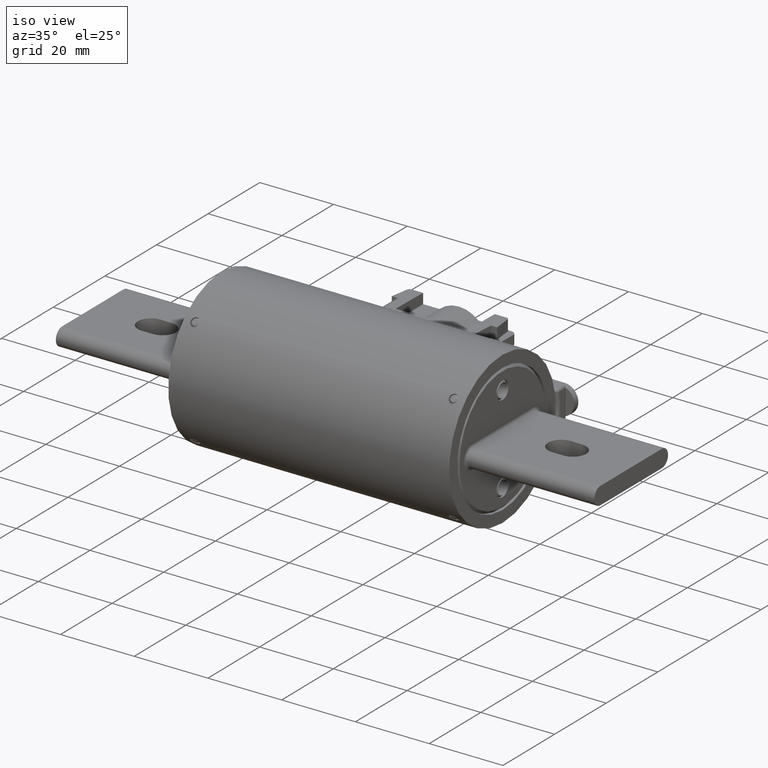
[diagram: clean part render]
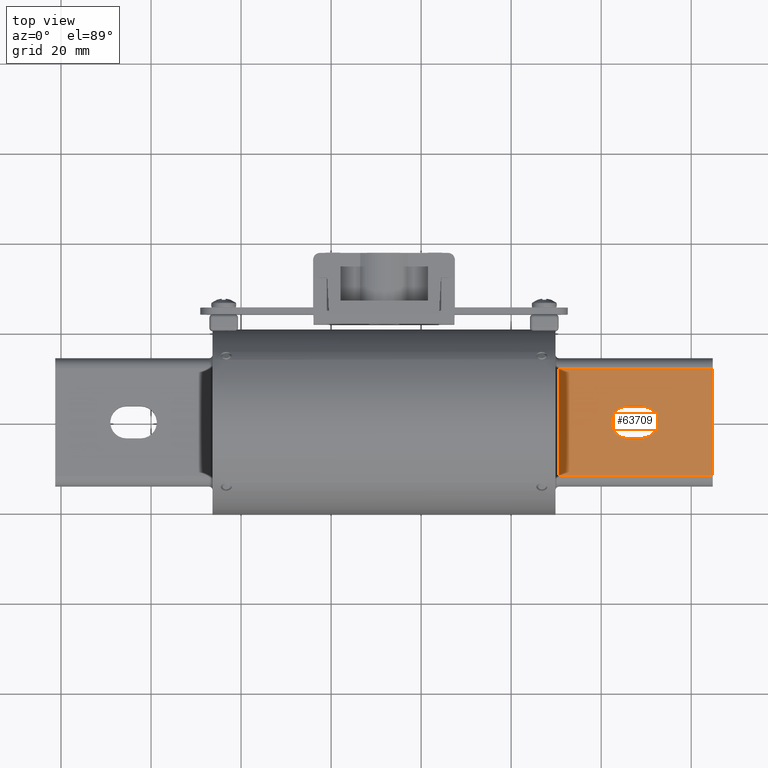
[diagram: tour spotlight — one face highlighted and labeled with its STEP entity id]
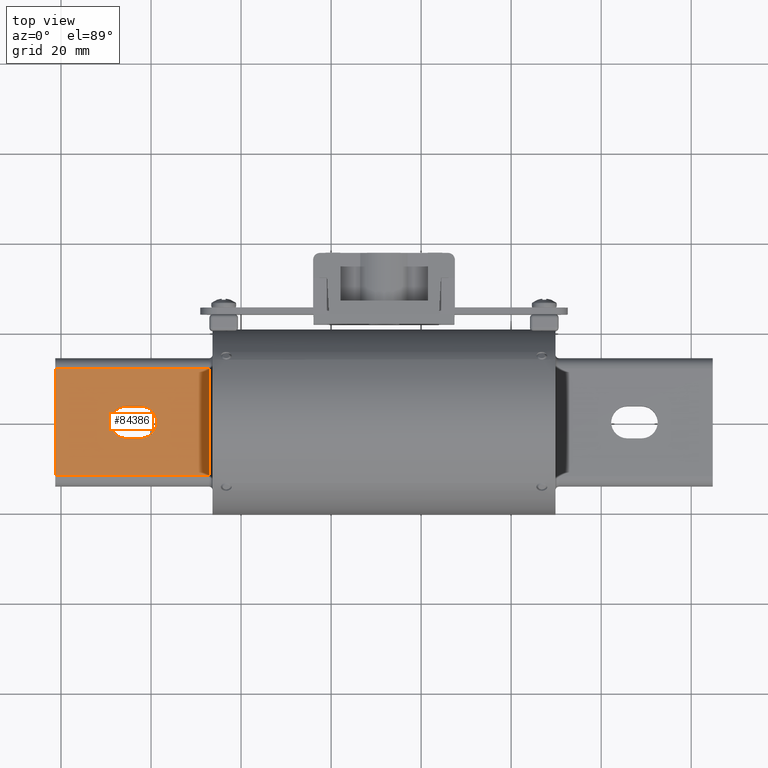
[diagram: tour spotlight — one face highlighted and labeled with its STEP entity id]
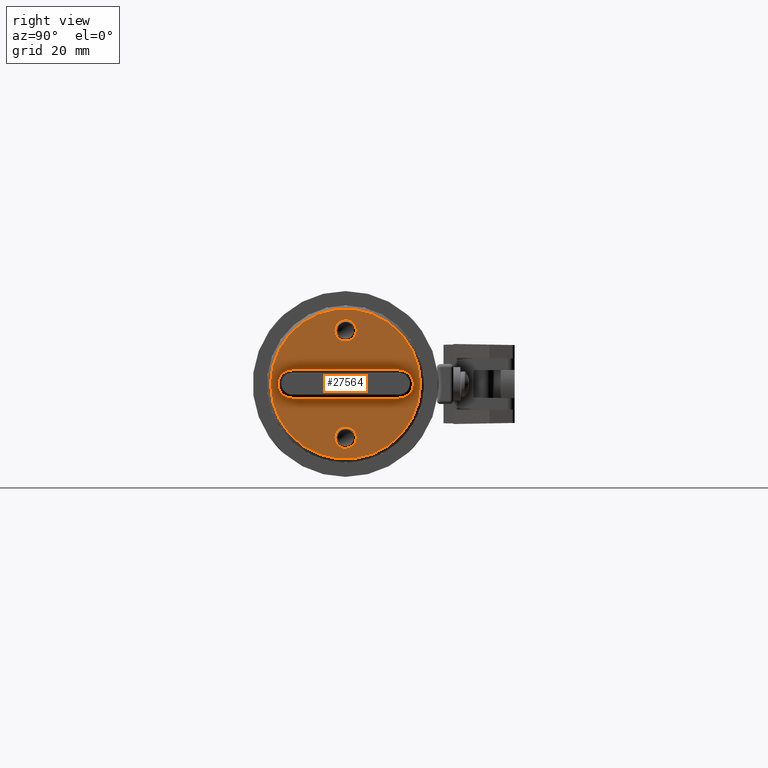
[diagram: tour spotlight — one face highlighted and labeled with its STEP entity id]
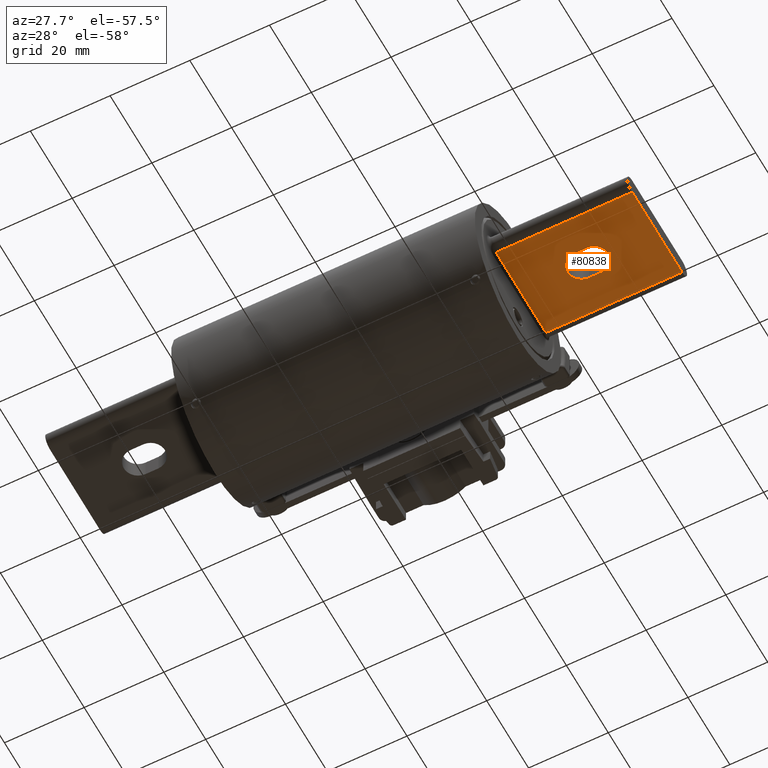
[diagram: tour spotlight — one face highlighted and labeled with its STEP entity id]
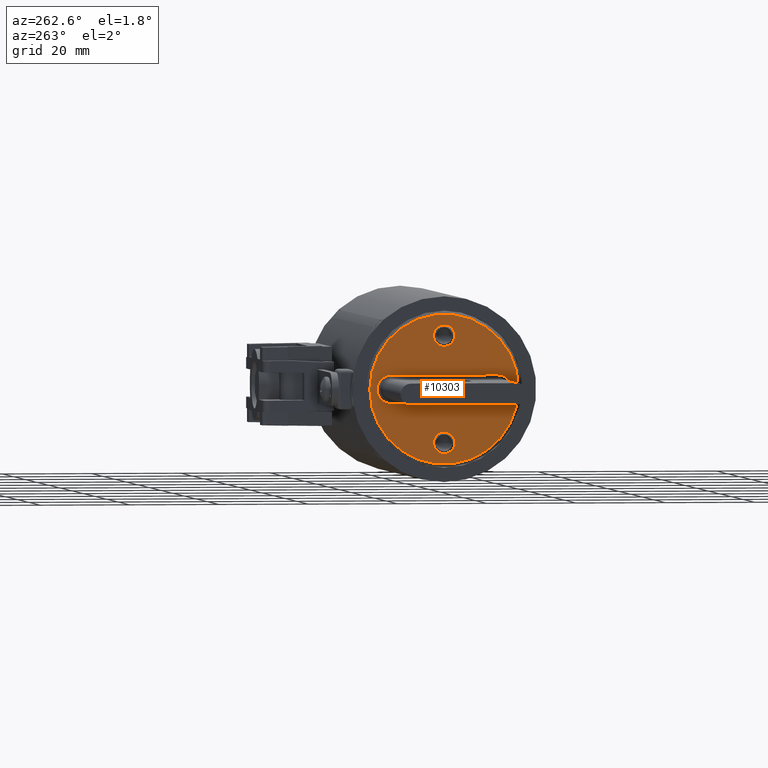
[diagram: tour spotlight — one face highlighted and labeled with its STEP entity id]
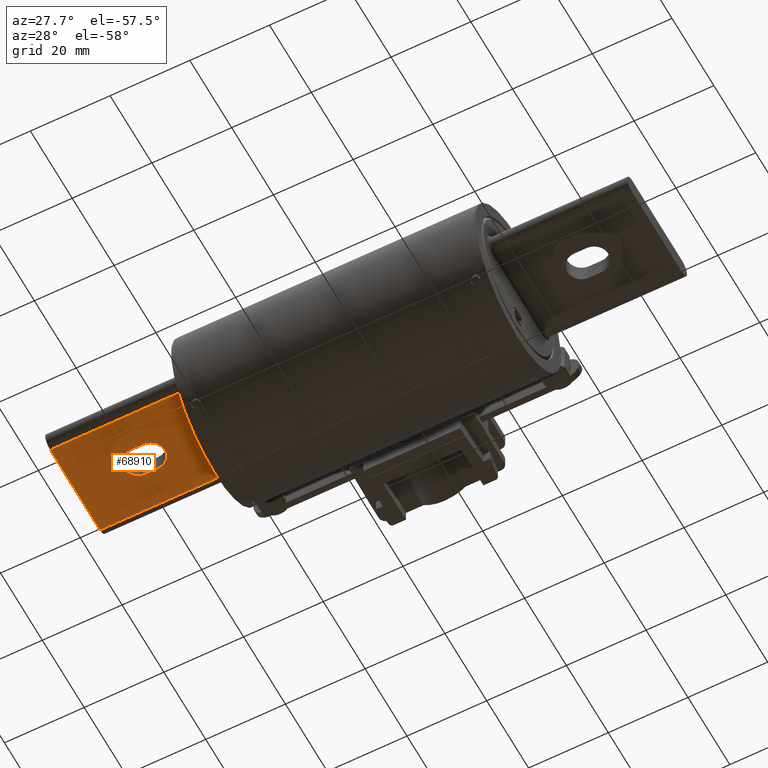
[diagram: tour spotlight — one face highlighted and labeled with its STEP entity id]
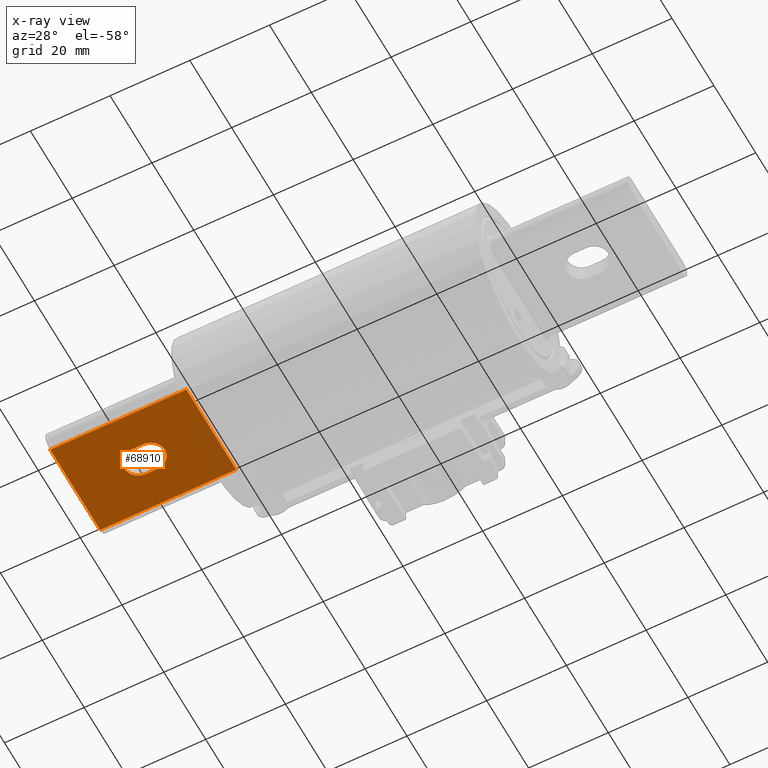
[diagram: x-ray of the same camera — body ghosted, this tour face saturated]
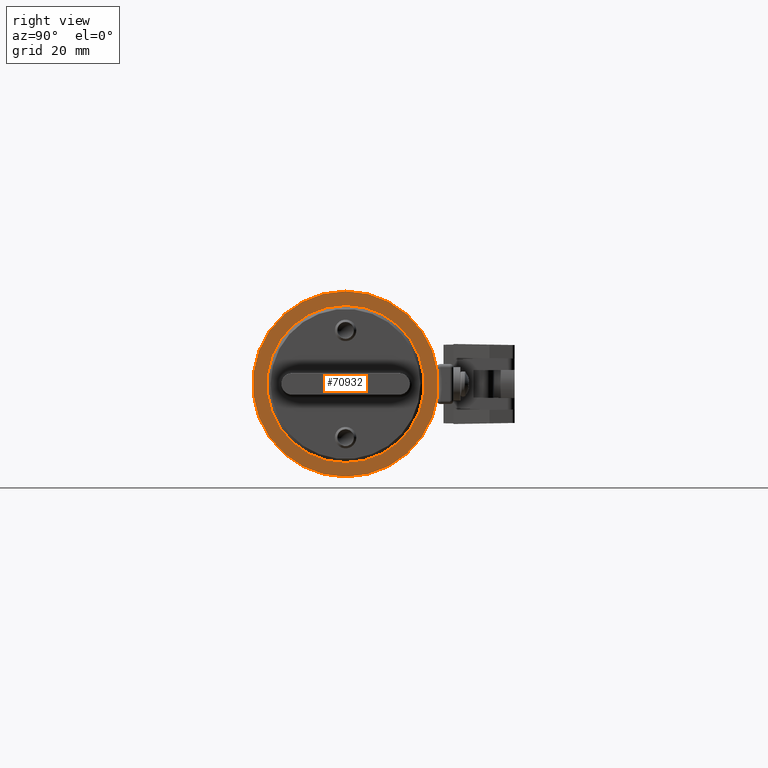
[diagram: tour spotlight — one face highlighted and labeled with its STEP entity id]
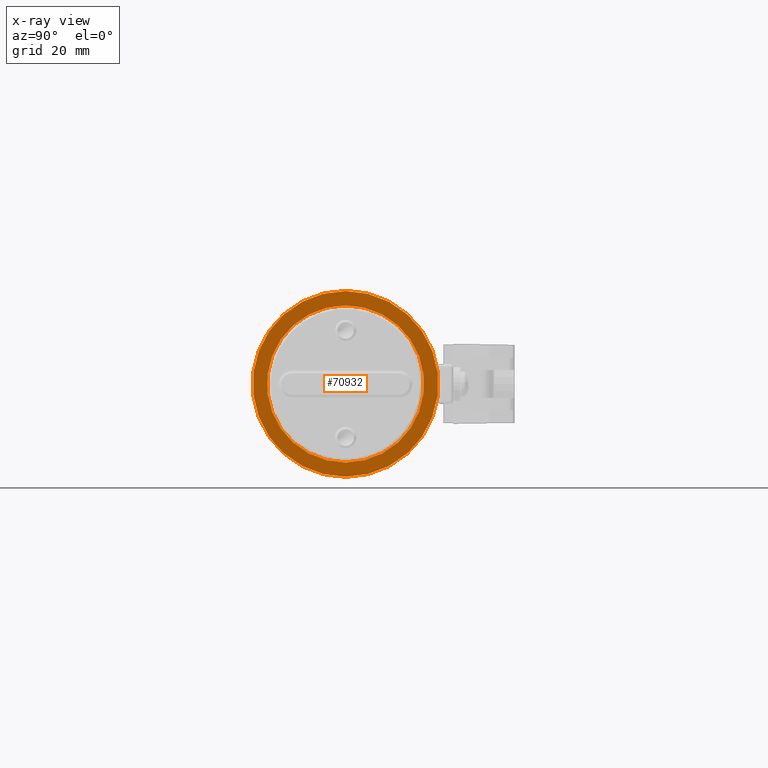
[diagram: x-ray of the same camera — body ghosted, this tour face saturated]
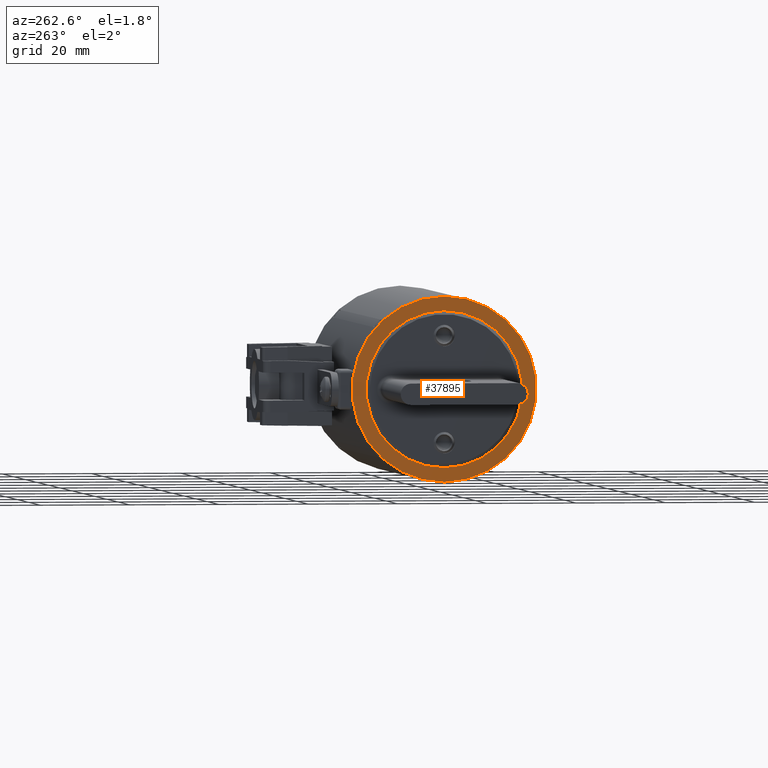
[diagram: tour spotlight — one face highlighted and labeled with its STEP entity id]
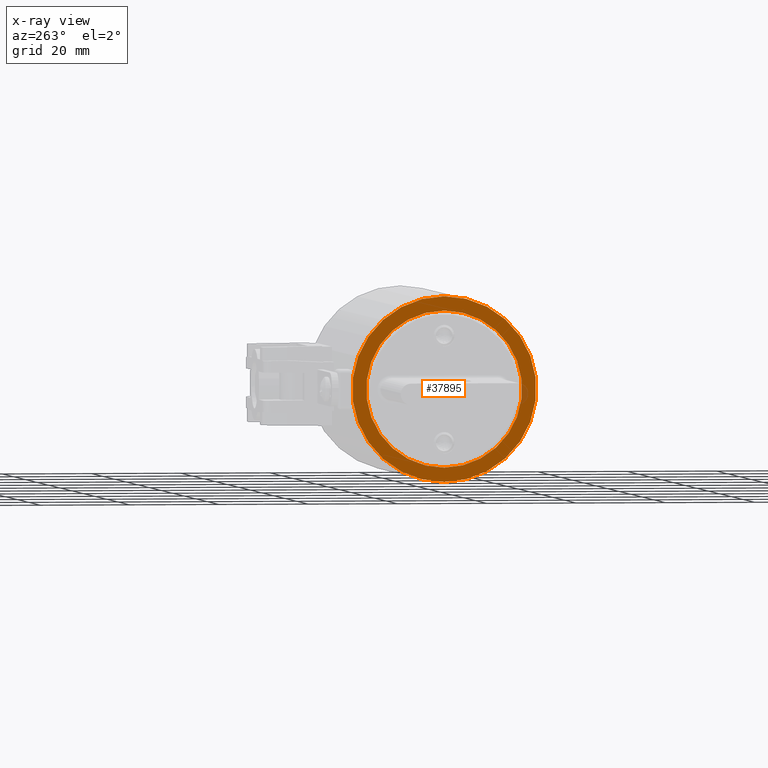
[diagram: x-ray of the same camera — body ghosted, this tour face saturated]
A machine part: a face-by-face anatomy tour. The part has 1412 B-rep faces; the first image is the clean iso view, then the 8 largest visible faces are spotlighted one at a time (largest first), each with its STEP entity span.

Face 1 — top view, entity #63709. In plain terms, the highlighted planar face has unit normal (-0, -0, -1).
Definition (entity closure, byte-faithful):
#4513 = EDGE_LOOP ( 'NONE', ( #73464, #84694, #71154, #83278 ) ) ;
#4594 = VERTEX_POINT ( 'NONE', #14296 ) ;
#5979 = DIRECTION ( 'NONE',  ( -1.183291357831517700E-030, -1.821231995776175500E-017, -1.000000000000000000 ) ) ;
#6194 = VECTOR ( 'NONE', #34552, 39.37007874015748100 ) ;
#6672 = VECTOR ( 'NONE', #70893, 39.37007874015748100 ) ;
#7104 = CIRCLE ( 'NONE', #21452, 0.1409999999999999600 ) ;
#7246 = VECTOR ( 'NONE', #31216, 39.37007874015748100 ) ;
#7629 = CARTESIAN_POINT ( 'NONE',  ( 3.377999999999998800, 5.122214988129037700E-018, 0.09375000000000012500 ) ) ;
#8597 = CARTESIAN_POINT ( 'NONE',  ( 4.124999999999998200, -0.4687500000000000000, 0.09375000000000012500 ) ) ;
#8602 = VERTEX_POINT ( 'NONE', #46447 ) ;
#8864 = DIRECTION ( 'NONE',  ( 2.155048081208195600E-047, -1.000000000000000000, 1.821231995776175500E-017 ) ) ;
#10279 = EDGE_CURVE ( 'NONE', #13212, #17296, #32636, .T. ) ;
#10486 = ORIENTED_EDGE ( 'NONE', *, *, #20313, .T. ) ;
#11638 = VERTEX_POINT ( 'NONE', #42933 ) ;
#11668 = EDGE_LOOP ( 'NONE', ( #80207, #75428, #21798, #10486 ) ) ;
#12873 = VECTOR ( 'NONE', #40616, 39.37007874015748100 ) ;
#13212 = VERTEX_POINT ( 'NONE', #56397 ) ;
#13476 = CARTESIAN_POINT ( 'NONE',  ( 4.124999999999998200, -0.4687500000000000000, 0.09375000000000012500 ) ) ;
#14201 = DIRECTION ( 'NONE',  ( 0.0000000000000000000, 1.000000000000000000, 0.0000000000000000000 ) ) ;
#14296 = CARTESIAN_POINT ( 'NONE',  ( 3.377999999999998800, 0.1409999999999999300, 0.09375000000000012500 ) ) ;
#14359 = CIRCLE ( 'NONE', #69276, 0.1409999999999999300 ) ;
#14935 = EDGE_CURVE ( 'NONE', #8602, #68216, #28294, .T. ) ;
#15112 = VECTOR ( 'NONE', #8864, 39.37007874015748100 ) ;
#17296 = VERTEX_POINT ( 'NONE', #32014 ) ;
#18382 = CARTESIAN_POINT ( 'NONE',  ( 4.124999999999998200, 0.4687500000000000000, 0.09375000000000012500 ) ) ;
#19507 = VERTEX_POINT ( 'NONE', #33694 ) ;
#20062 = DIRECTION ( 'NONE',  ( -2.155048081208195600E-047, 1.000000000000000000, -1.821231995776175500E-017 ) ) ;
#20313 = EDGE_CURVE ( 'NONE', #67559, #4594, #14359, .T. ) ;
#20702 = EDGE_CURVE ( 'NONE', #13212, #8602, #41612, .T. ) ;
#21452 = AXIS2_PLACEMENT_3D ( 'NONE', #45328, #5979, #51985 ) ;
#21798 = ORIENTED_EDGE ( 'NONE', *, *, #78840, .T. ) ;
#24571 = CARTESIAN_POINT ( 'NONE',  ( 4.124999999999998200, -0.1410000000000000700, 0.09375000000000012500 ) ) ;
#24674 = LINE ( 'NONE', #24571, #7246 ) ;
#27391 = EDGE_CURVE ( 'NONE', #19507, #11638, #7104, .T. ) ;
#27916 = CARTESIAN_POINT ( 'NONE',  ( 4.124999999999998200, -0.4687500000000000000, 0.09375000000000012500 ) ) ;
#28294 = LINE ( 'NONE', #73179, #12873 ) ;
#29739 = FACE_OUTER_BOUND ( 'NONE', #4513, .T. ) ;
#31216 = DIRECTION ( 'NONE',  ( -1.000000000000000000, 2.731847993664265700E-016, 1.178316028857859400E-030 ) ) ;
#32014 = CARTESIAN_POINT ( 'NONE',  ( 4.124999999999998200, -0.4687500000000000000, 0.09375000000000012500 ) ) ;
#32636 = LINE ( 'NONE', #8597, #15112 ) ;
#33694 = CARTESIAN_POINT ( 'NONE',  ( 3.502999999999998300, 0.1409999999999999300, 0.09375000000000012500 ) ) ;
#34552 = DIRECTION ( 'NONE',  ( -1.000000000000000000, 0.0000000000000000000, 1.183291357831517700E-030 ) ) ;
#37378 = CARTESIAN_POINT ( 'NONE',  ( 2.779999999999998000, -0.4687500000000000000, 0.09375000000000012500 ) ) ;
#40616 = DIRECTION ( 'NONE',  ( 2.155048081208195600E-047, -1.000000000000000000, 1.821231995776175500E-017 ) ) ;
#41612 = LINE ( 'NONE', #18382, #6672 ) ;
#42933 = CARTESIAN_POINT ( 'NONE',  ( 3.502999999999998300, -0.1409999999999999900, 0.09375000000000012500 ) ) ;
#45328 = CARTESIAN_POINT ( 'NONE',  ( 3.502999999999998300, 5.122214988129037700E-018, 0.09375000000000012500 ) ) ;
#46443 = EDGE_CURVE ( 'NONE', #4594, #19507, #66205, .T. ) ;
#46447 = CARTESIAN_POINT ( 'NONE',  ( 2.779999999999998000, 0.4687500000000000000, 0.09375000000000012500 ) ) ;
#47229 = FACE_BOUND ( 'NONE', #11668, .T. ) ;
#50041 = AXIS2_PLACEMENT_3D ( 'NONE', #13476, #59486, #20062 ) ;
#51985 = DIRECTION ( 'NONE',  ( 0.0000000000000000000, 1.000000000000000000, 0.0000000000000000000 ) ) ;
#53623 = DIRECTION ( 'NONE',  ( -1.183291357831517700E-030, -1.821231995776175500E-017, -1.000000000000000000 ) ) ;
#54533 = CARTESIAN_POINT ( 'NONE',  ( 3.377999999999998800, -0.1409999999999998800, 0.09375000000000012500 ) ) ;
#56397 = CARTESIAN_POINT ( 'NONE',  ( 4.124999999999998200, 0.4687500000000000000, 0.09375000000000012500 ) ) ;
#58625 = LINE ( 'NONE', #27916, #6194 ) ;
#59486 = DIRECTION ( 'NONE',  ( -1.183291357831517700E-030, -1.821231995776175500E-017, -1.000000000000000000 ) ) ;
#63709 = ADVANCED_FACE ( 'NONE', ( #47229, #29739 ), #72245, .F. ) ;
#64140 = VECTOR ( 'NONE', #78285, 39.37007874015748100 ) ;
#66205 = LINE ( 'NONE', #71770, #64140 ) ;
#67559 = VERTEX_POINT ( 'NONE', #54533 ) ;
#68216 = VERTEX_POINT ( 'NONE', #37378 ) ;
#69198 = EDGE_CURVE ( 'NONE', #17296, #68216, #58625, .T. ) ;
#69276 = AXIS2_PLACEMENT_3D ( 'NONE', #7629, #53623, #14201 ) ;
#70893 = DIRECTION ( 'NONE',  ( -1.000000000000000000, 0.0000000000000000000, 1.183291357831517700E-030 ) ) ;
#71154 = ORIENTED_EDGE ( 'NONE', *, *, #69198, .F. ) ;
#71770 = CARTESIAN_POINT ( 'NONE',  ( 4.124999999999998200, 0.1409999999999999300, 0.09375000000000011100 ) ) ;
#72245 = PLANE ( 'NONE',  #50041 ) ;
#73179 = CARTESIAN_POINT ( 'NONE',  ( 2.779999999999998000, -0.4687500000000000000, 0.09375000000000012500 ) ) ;
#73464 = ORIENTED_EDGE ( 'NONE', *, *, #20702, .T. ) ;
#75428 = ORIENTED_EDGE ( 'NONE', *, *, #27391, .T. ) ;
#78285 = DIRECTION ( 'NONE',  ( 1.000000000000000000, 0.0000000000000000000, -1.183291357831517700E-030 ) ) ;
#78840 = EDGE_CURVE ( 'NONE', #11638, #67559, #24674, .T. ) ;
#80207 = ORIENTED_EDGE ( 'NONE', *, *, #46443, .T. ) ;
#83278 = ORIENTED_EDGE ( 'NONE', *, *, #10279, .F. ) ;
#84694 = ORIENTED_EDGE ( 'NONE', *, *, #14935, .T. ) ;

Face 2 — top view, entity #84386. In plain terms, the highlighted planar face has unit normal (0, 0, -1).
Definition (entity closure, byte-faithful):
#2192 = EDGE_LOOP ( 'NONE', ( #22207, #79092, #19687, #10078 ) ) ;
#3260 = ORIENTED_EDGE ( 'NONE', *, *, #25788, .T. ) ;
#3670 = EDGE_CURVE ( 'NONE', #50966, #6063, #34035, .T. ) ;
#4221 = CIRCLE ( 'NONE', #53756, 0.1409999999999999300 ) ;
#5193 = CARTESIAN_POINT ( 'NONE',  ( -0.2800000000000000300, 0.4687500000000000000, 0.09375000000000012500 ) ) ;
#5463 = VECTOR ( 'NONE', #8899, 39.37007874015748100 ) ;
#5861 = CARTESIAN_POINT ( 'NONE',  ( -1.002999999999999900, -0.1409999999999999300, 0.09375000000000012500 ) ) ;
#6063 = VERTEX_POINT ( 'NONE', #30254 ) ;
#8899 = DIRECTION ( 'NONE',  ( -7.183493604027317500E-048, 1.000000000000000000, 1.821231995776175500E-017 ) ) ;
#9593 = VERTEX_POINT ( 'NONE', #59863 ) ;
#10078 = ORIENTED_EDGE ( 'NONE', *, *, #3670, .F. ) ;
#12202 = DIRECTION ( 'NONE',  ( 3.944304526105058200E-031, 1.821231995776175500E-017, -1.000000000000000000 ) ) ;
#12426 = CARTESIAN_POINT ( 'NONE',  ( -1.002999999999999900, 0.1409999999999999900, 0.09375000000000012500 ) ) ;
#12777 = CARTESIAN_POINT ( 'NONE',  ( -0.8780000000000000000, -5.122214988120498200E-018, 0.09375000000000012500 ) ) ;
#13706 = DIRECTION ( 'NONE',  ( 3.944304526105058600E-031, 1.821231995776175500E-017, -1.000000000000000000 ) ) ;
#14778 = VECTOR ( 'NONE', #14845, 39.37007874015748100 ) ;
#14845 = DIRECTION ( 'NONE',  ( 1.000000000000000000, -2.731847993664265700E-016, 3.894551236368475500E-031 ) ) ;
#15262 = VERTEX_POINT ( 'NONE', #5193 ) ;
#15352 = FACE_OUTER_BOUND ( 'NONE', #2192, .T. ) ;
#19355 = DIRECTION ( 'NONE',  ( 0.0000000000000000000, -1.000000000000000000, 0.0000000000000000000 ) ) ;
#19687 = ORIENTED_EDGE ( 'NONE', *, *, #34697, .F. ) ;
#22207 = ORIENTED_EDGE ( 'NONE', *, *, #24080, .T. ) ;
#24080 = EDGE_CURVE ( 'NONE', #50966, #74370, #33617, .T. ) ;
#25788 = EDGE_CURVE ( 'NONE', #30687, #67737, #35019, .T. ) ;
#27754 = CARTESIAN_POINT ( 'NONE',  ( -1.625000000000000000, 0.1410000000000000700, 0.09375000000000012500 ) ) ;
#28245 = DIRECTION ( 'NONE',  ( 1.000000000000000000, 0.0000000000000000000, 3.944304526105058200E-031 ) ) ;
#28413 = EDGE_CURVE ( 'NONE', #9593, #30687, #37586, .T. ) ;
#29742 = CARTESIAN_POINT ( 'NONE',  ( -1.625000000000000000, 0.4687500000000000000, 0.09375000000000012500 ) ) ;
#30254 = CARTESIAN_POINT ( 'NONE',  ( -1.625000000000000000, 0.4687500000000000000, 0.09375000000000012500 ) ) ;
#30687 = VERTEX_POINT ( 'NONE', #5861 ) ;
#30792 = FACE_BOUND ( 'NONE', #77255, .T. ) ;
#33617 = LINE ( 'NONE', #58031, #49072 ) ;
#34035 = LINE ( 'NONE', #29742, #68849 ) ;
#34697 = EDGE_CURVE ( 'NONE', #6063, #15262, #57207, .T. ) ;
#35019 = CIRCLE ( 'NONE', #65437, 0.1409999999999999600 ) ;
#35062 = AXIS2_PLACEMENT_3D ( 'NONE', #51632, #12202, #58218 ) ;
#35429 = EDGE_CURVE ( 'NONE', #74370, #15262, #40436, .T. ) ;
#36315 = EDGE_CURVE ( 'NONE', #70593, #9593, #4221, .T. ) ;
#37586 = LINE ( 'NONE', #83651, #72381 ) ;
#39567 = EDGE_CURVE ( 'NONE', #67737, #70593, #51845, .T. ) ;
#40346 = ORIENTED_EDGE ( 'NONE', *, *, #36315, .T. ) ;
#40436 = LINE ( 'NONE', #48314, #5463 ) ;
#43853 = CARTESIAN_POINT ( 'NONE',  ( -1.625000000000000000, -0.4687500000000000000, 0.09375000000000012500 ) ) ;
#48314 = CARTESIAN_POINT ( 'NONE',  ( -0.2800000000000000300, 0.4687500000000000000, 0.09375000000000012500 ) ) ;
#49072 = VECTOR ( 'NONE', #51450, 39.37007874015748100 ) ;
#50888 = DIRECTION ( 'NONE',  ( -7.183493604027317500E-048, 1.000000000000000000, 1.821231995776175500E-017 ) ) ;
#50966 = VERTEX_POINT ( 'NONE', #43853 ) ;
#51357 = PLANE ( 'NONE',  #35062 ) ;
#51450 = DIRECTION ( 'NONE',  ( 1.000000000000000000, 0.0000000000000000000, 3.944304526105058200E-031 ) ) ;
#51632 = CARTESIAN_POINT ( 'NONE',  ( -1.625000000000000000, 0.4687500000000000000, 0.09375000000000012500 ) ) ;
#51845 = LINE ( 'NONE', #27754, #14778 ) ;
#53137 = CARTESIAN_POINT ( 'NONE',  ( -1.002999999999999900, -5.122214988120498200E-018, 0.09375000000000012500 ) ) ;
#53756 = AXIS2_PLACEMENT_3D ( 'NONE', #12777, #58821, #19355 ) ;
#55117 = CARTESIAN_POINT ( 'NONE',  ( -0.8780000000000000000, 0.1409999999999998800, 0.09375000000000012500 ) ) ;
#57207 = LINE ( 'NONE', #74124, #74489 ) ;
#57724 = DIRECTION ( 'NONE',  ( -1.000000000000000000, 0.0000000000000000000, -3.944304526105058200E-031 ) ) ;
#58031 = CARTESIAN_POINT ( 'NONE',  ( -1.625000000000000000, -0.4687500000000000000, 0.09375000000000012500 ) ) ;
#58218 = DIRECTION ( 'NONE',  ( 7.183493604027317500E-048, -1.000000000000000000, -1.821231995776175500E-017 ) ) ;
#58821 = DIRECTION ( 'NONE',  ( 3.944304526105058600E-031, 1.821231995776175500E-017, -1.000000000000000000 ) ) ;
#59702 = DIRECTION ( 'NONE',  ( 0.0000000000000000000, -1.000000000000000000, 0.0000000000000000000 ) ) ;
#59863 = CARTESIAN_POINT ( 'NONE',  ( -0.8780000000000000000, -0.1409999999999999300, 0.09375000000000012500 ) ) ;
#65437 = AXIS2_PLACEMENT_3D ( 'NONE', #53137, #13706, #59702 ) ;
#67737 = VERTEX_POINT ( 'NONE', #12426 ) ;
#68849 = VECTOR ( 'NONE', #50888, 39.37007874015748100 ) ;
#70593 = VERTEX_POINT ( 'NONE', #55117 ) ;
#71865 = CARTESIAN_POINT ( 'NONE',  ( -0.2800000000000000300, -0.4687500000000000000, 0.09375000000000012500 ) ) ;
#72381 = VECTOR ( 'NONE', #57724, 39.37007874015748100 ) ;
#73417 = ORIENTED_EDGE ( 'NONE', *, *, #39567, .T. ) ;
#74124 = CARTESIAN_POINT ( 'NONE',  ( -1.625000000000000000, 0.4687500000000000000, 0.09375000000000012500 ) ) ;
#74370 = VERTEX_POINT ( 'NONE', #71865 ) ;
#74489 = VECTOR ( 'NONE', #28245, 39.37007874015748100 ) ;
#77255 = EDGE_LOOP ( 'NONE', ( #85106, #3260, #73417, #40346 ) ) ;
#79092 = ORIENTED_EDGE ( 'NONE', *, *, #35429, .T. ) ;
#83651 = CARTESIAN_POINT ( 'NONE',  ( -1.625000000000000000, -0.1409999999999999300, 0.09375000000000011100 ) ) ;
#84386 = ADVANCED_FACE ( 'NONE', ( #30792, #15352 ), #51357, .F. ) ;
#85106 = ORIENTED_EDGE ( 'NONE', *, *, #28413, .T. ) ;

Face 3 — right view, entity #27564. In plain terms, the highlighted planar face has unit normal (1, 0, -0).
Definition (entity closure, byte-faithful):
#813 = FACE_BOUND ( 'NONE', #34122, .T. ) ;
#2725 = DIRECTION ( 'NONE',  ( 0.0000000000000000000, 1.000000000000000000, -2.644533087458223300E-043 ) ) ;
#3519 = CARTESIAN_POINT ( 'NONE',  ( 2.749999999999998200, 0.4687500000000000000, -0.1237499999999999200 ) ) ;
#4142 = DIRECTION ( 'NONE',  ( -1.000000000000000000, 0.0000000000000000000, 1.183291357831517700E-030 ) ) ;
#4265 = DIRECTION ( 'NONE',  ( 0.0000000000000000000, -1.000000000000000000, 0.0000000000000000000 ) ) ;
#4683 = CIRCLE ( 'NONE', #9917, 0.09400000000000001400 ) ;
#6616 = VERTEX_POINT ( 'NONE', #3519 ) ;
#6867 = CIRCLE ( 'NONE', #42205, 0.09400000000000001400 ) ;
#8663 = VERTEX_POINT ( 'NONE', #55367 ) ;
#9917 = AXIS2_PLACEMENT_3D ( 'NONE', #82832, #43660, #4265 ) ;
#12417 = VERTEX_POINT ( 'NONE', #52589 ) ;
#13010 = CIRCLE ( 'NONE', #67177, 0.1237500000000000100 ) ;
#13495 = ORIENTED_EDGE ( 'NONE', *, *, #24341, .T. ) ;
#15272 = AXIS2_PLACEMENT_3D ( 'NONE', #81255, #42134, #2725 ) ;
#15857 = DIRECTION ( 'NONE',  ( -1.000000000000000000, -0.0000000000000000000, 1.183291357831517700E-030 ) ) ;
#16450 = DIRECTION ( 'NONE',  ( -1.000000000000000000, -0.0000000000000000000, 1.183291357831517700E-030 ) ) ;
#17725 = DIRECTION ( 'NONE',  ( -2.155048081208195600E-047, 1.000000000000000000, -1.821231995776175500E-017 ) ) ;
#17950 = EDGE_CURVE ( 'NONE', #75301, #75301, #6867, .T. ) ;
#18161 = AXIS2_PLACEMENT_3D ( 'NONE', #55880, #16450, #62399 ) ;
#18294 = FACE_OUTER_BOUND ( 'NONE', #31842, .T. ) ;
#18369 = CARTESIAN_POINT ( 'NONE',  ( 2.749999999999998200, -0.4687500000000000000, 0.1237500000000001400 ) ) ;
#20709 = EDGE_LOOP ( 'NONE', ( #79847 ) ) ;
#21218 = LINE ( 'NONE', #28964, #56276 ) ;
#22566 = CIRCLE ( 'NONE', #18161, 0.1237500000000000100 ) ;
#24341 = EDGE_CURVE ( 'NONE', #37539, #37539, #48891, .T. ) ;
#27564 = ADVANCED_FACE ( 'NONE', ( #813, #68630, #70665, #18294 ), #78689, .T. ) ;
#28693 = CARTESIAN_POINT ( 'NONE',  ( 2.749999999999998200, -0.09400000000000005600, -0.4689999999999999700 ) ) ;
#28964 = CARTESIAN_POINT ( 'NONE',  ( 2.749999999999998200, -6.761323784310504300E-018, -0.1237499999999998700 ) ) ;
#29487 = EDGE_CURVE ( 'NONE', #84879, #12417, #76093, .T. ) ;
#30710 = CARTESIAN_POINT ( 'NONE',  ( 2.749999999999998200, 2.253774594781558800E-018, 0.1237500000000001100 ) ) ;
#31842 = EDGE_LOOP ( 'NONE', ( #13495 ) ) ;
#33271 = DIRECTION ( 'NONE',  ( 1.000000000000000000, 0.0000000000000000000, -1.183291357831517700E-030 ) ) ;
#33476 = EDGE_CURVE ( 'NONE', #12417, #6616, #22566, .T. ) ;
#34122 = EDGE_LOOP ( 'NONE', ( #68413, #39732, #35662, #66484 ) ) ;
#35662 = ORIENTED_EDGE ( 'NONE', *, *, #29487, .T. ) ;
#37539 = VERTEX_POINT ( 'NONE', #79827 ) ;
#37983 = EDGE_LOOP ( 'NONE', ( #75370 ) ) ;
#39732 = ORIENTED_EDGE ( 'NONE', *, *, #41527, .T. ) ;
#41314 = VECTOR ( 'NONE', #17725, 39.37007874015748100 ) ;
#41527 = EDGE_CURVE ( 'NONE', #43933, #84879, #13010, .T. ) ;
#41929 = DIRECTION ( 'NONE',  ( 6.465144243624586800E-047, -1.000000000000000000, 5.463695987328526400E-017 ) ) ;
#42134 = DIRECTION ( 'NONE',  ( 1.000000000000000000, 0.0000000000000000000, -1.183291357831517700E-030 ) ) ;
#42205 = AXIS2_PLACEMENT_3D ( 'NONE', #43536, #4142, #50202 ) ;
#43536 = CARTESIAN_POINT ( 'NONE',  ( 2.749999999999998200, -5.743593488000233200E-017, -0.4689999999999999700 ) ) ;
#43660 = DIRECTION ( 'NONE',  ( -1.000000000000000000, 0.0000000000000000000, 1.183291357831517700E-030 ) ) ;
#43933 = VERTEX_POINT ( 'NONE', #60274 ) ;
#48891 = CIRCLE ( 'NONE', #15272, 0.6560000000000011400 ) ;
#50202 = DIRECTION ( 'NONE',  ( 0.0000000000000000000, -1.000000000000000000, 0.0000000000000000000 ) ) ;
#52589 = CARTESIAN_POINT ( 'NONE',  ( 2.749999999999998200, 0.4687500000000000000, 0.1237500000000001400 ) ) ;
#55294 = CARTESIAN_POINT ( 'NONE',  ( 2.749999999999998200, -0.4687500000000000000, 5.975917486140715700E-017 ) ) ;
#55367 = CARTESIAN_POINT ( 'NONE',  ( 2.749999999999998200, -0.09400000000000001400, 0.4689999999999999700 ) ) ;
#55880 = CARTESIAN_POINT ( 'NONE',  ( 2.749999999999998200, 0.4687500000000000000, 1.112382256183039600E-016 ) ) ;
#56276 = VECTOR ( 'NONE', #41929, 39.37007874015748100 ) ;
#60274 = CARTESIAN_POINT ( 'NONE',  ( 2.749999999999998200, -0.4687500000000000000, -0.1237499999999998600 ) ) ;
#61812 = DIRECTION ( 'NONE',  ( 0.0000000000000000000, 1.000000000000000000, 0.0000000000000000000 ) ) ;
#62399 = DIRECTION ( 'NONE',  ( 0.0000000000000000000, 1.000000000000000000, 0.0000000000000000000 ) ) ;
#65466 = AXIS2_PLACEMENT_3D ( 'NONE', #72451, #33271, #78967 ) ;
#65929 = EDGE_CURVE ( 'NONE', #6616, #43933, #21218, .T. ) ;
#66484 = ORIENTED_EDGE ( 'NONE', *, *, #33476, .T. ) ;
#67177 = AXIS2_PLACEMENT_3D ( 'NONE', #55294, #15857, #61812 ) ;
#68413 = ORIENTED_EDGE ( 'NONE', *, *, #65929, .T. ) ;
#68630 = FACE_BOUND ( 'NONE', #20709, .T. ) ;
#70312 = EDGE_CURVE ( 'NONE', #8663, #8663, #4683, .T. ) ;
#70665 = FACE_BOUND ( 'NONE', #37983, .T. ) ;
#72451 = CARTESIAN_POINT ( 'NONE',  ( 2.749999999999998200, 8.539679527031985500E-030, 1.403438798797421700E-030 ) ) ;
#75301 = VERTEX_POINT ( 'NONE', #28693 ) ;
#75370 = ORIENTED_EDGE ( 'NONE', *, *, #17950, .T. ) ;
#76093 = LINE ( 'NONE', #30710, #41314 ) ;
#78689 = PLANE ( 'NONE',  #65466 ) ;
#78967 = DIRECTION ( 'NONE',  ( -3.128766006814256500E-073, 1.000000000000000000, -2.644121404341181800E-043 ) ) ;
#79827 = CARTESIAN_POINT ( 'NONE',  ( 2.749999999999998200, 0.6560000000000011400, 1.403438798797248300E-030 ) ) ;
#79847 = ORIENTED_EDGE ( 'NONE', *, *, #70312, .T. ) ;
#81255 = CARTESIAN_POINT ( 'NONE',  ( 2.749999999999998200, 8.539679527031985500E-030, 1.403438798797421700E-030 ) ) ;
#82832 = CARTESIAN_POINT ( 'NONE',  ( 2.749999999999998200, 8.539679527031857900E-030, 0.4689999999999999700 ) ) ;
#84879 = VERTEX_POINT ( 'NONE', #18369 ) ;

Face 4 — auxiliary view, entity #80838. In plain terms, the highlighted planar face has unit normal (0, 0, 1).
Definition (entity closure, byte-faithful):
#904 = ORIENTED_EDGE ( 'NONE', *, *, #45874, .F. ) ;
#1925 = CARTESIAN_POINT ( 'NONE',  ( 4.124999999999998200, -0.4687500000000000000, -0.09374999999999984700 ) ) ;
#4652 = VECTOR ( 'NONE', #48599, 39.37007874015748100 ) ;
#5448 = VERTEX_POINT ( 'NONE', #11181 ) ;
#5520 = DIRECTION ( 'NONE',  ( -1.000000000000000000, 2.731847993664265700E-016, 1.183291357831517700E-030 ) ) ;
#6559 = EDGE_CURVE ( 'NONE', #10207, #54388, #15052, .T. ) ;
#7814 = VERTEX_POINT ( 'NONE', #14526 ) ;
#8708 = FACE_BOUND ( 'NONE', #12631, .T. ) ;
#10207 = VERTEX_POINT ( 'NONE', #1925 ) ;
#11181 = CARTESIAN_POINT ( 'NONE',  ( 2.779999999999998000, -0.4687500000000000000, -0.09374999999999984700 ) ) ;
#12355 = VECTOR ( 'NONE', #34680, 39.37007874015748100 ) ;
#12631 = EDGE_LOOP ( 'NONE', ( #66300, #37584, #904, #28316 ) ) ;
#12965 = VECTOR ( 'NONE', #50452, 39.37007874015748100 ) ;
#13102 = PLANE ( 'NONE',  #53920 ) ;
#14526 = CARTESIAN_POINT ( 'NONE',  ( 3.502999999999998300, -0.1409999999999999900, -0.09374999999999987500 ) ) ;
#15052 = LINE ( 'NONE', #80243, #12965 ) ;
#15307 = ORIENTED_EDGE ( 'NONE', *, *, #51754, .T. ) ;
#17882 = DIRECTION ( 'NONE',  ( -1.183291357831517700E-030, -5.463695987328526400E-017, -1.000000000000000000 ) ) ;
#18328 = AXIS2_PLACEMENT_3D ( 'NONE', #76405, #37221, #83000 ) ;
#21396 = VERTEX_POINT ( 'NONE', #39300 ) ;
#21475 = ORIENTED_EDGE ( 'NONE', *, *, #6559, .F. ) ;
#22511 = LINE ( 'NONE', #51530, #37970 ) ;
#26708 = ORIENTED_EDGE ( 'NONE', *, *, #79395, .F. ) ;
#28316 = ORIENTED_EDGE ( 'NONE', *, *, #61368, .F. ) ;
#28411 = CARTESIAN_POINT ( 'NONE',  ( 3.502999999999998300, 0.1409999999999999300, -0.09374999999999988900 ) ) ;
#29853 = LINE ( 'NONE', #41297, #12355 ) ;
#30491 = VERTEX_POINT ( 'NONE', #80651 ) ;
#33267 = DIRECTION ( 'NONE',  ( 1.183291357831517700E-030, 5.463695987328526400E-017, 1.000000000000000000 ) ) ;
#34680 = DIRECTION ( 'NONE',  ( 1.000000000000000000, 0.0000000000000000000, -1.183291357831517700E-030 ) ) ;
#35915 = CARTESIAN_POINT ( 'NONE',  ( 4.124999999999998200, 0.4687500000000000000, -0.09374999999999990300 ) ) ;
#36041 = CIRCLE ( 'NONE', #18328, 0.1409999999999999300 ) ;
#37221 = DIRECTION ( 'NONE',  ( -1.183291357831517700E-030, -5.463695987328526400E-017, -1.000000000000000000 ) ) ;
#37384 = AXIS2_PLACEMENT_3D ( 'NONE', #57366, #17882, #63853 ) ;
#37584 = ORIENTED_EDGE ( 'NONE', *, *, #81153, .F. ) ;
#37970 = VECTOR ( 'NONE', #5520, 39.37007874015748100 ) ;
#38865 = VECTOR ( 'NONE', #42522, 39.37007874015748100 ) ;
#39300 = CARTESIAN_POINT ( 'NONE',  ( 3.377999999999998800, -0.1409999999999999300, -0.09374999999999988900 ) ) ;
#39626 = LINE ( 'NONE', #81087, #4652 ) ;
#41297 = CARTESIAN_POINT ( 'NONE',  ( 3.502999999999998300, 0.1409999999999999300, -0.09374999999999988900 ) ) ;
#42522 = DIRECTION ( 'NONE',  ( -1.000000000000000000, 0.0000000000000000000, 1.183291357831517700E-030 ) ) ;
#43213 = CARTESIAN_POINT ( 'NONE',  ( 4.124999999999998200, 0.4687500000000000000, -0.09374999999999990300 ) ) ;
#44021 = DIRECTION ( 'NONE',  ( -6.465144243624586800E-047, 1.000000000000000000, -5.463695987328526400E-017 ) ) ;
#45214 = VERTEX_POINT ( 'NONE', #28411 ) ;
#45874 = EDGE_CURVE ( 'NONE', #30491, #45214, #29853, .T. ) ;
#46152 = CARTESIAN_POINT ( 'NONE',  ( 2.779999999999998000, 0.4687500000000000000, -0.09374999999999990300 ) ) ;
#46555 = ORIENTED_EDGE ( 'NONE', *, *, #48656, .T. ) ;
#46995 = VECTOR ( 'NONE', #44021, 39.37007874015748100 ) ;
#48599 = DIRECTION ( 'NONE',  ( -1.000000000000000000, 0.0000000000000000000, 1.183291357831517700E-030 ) ) ;
#48656 = EDGE_CURVE ( 'NONE', #5448, #72793, #81707, .T. ) ;
#50452 = DIRECTION ( 'NONE',  ( -6.465144243624586800E-047, 1.000000000000000000, -5.463695987328526400E-017 ) ) ;
#51530 = CARTESIAN_POINT ( 'NONE',  ( 3.502999999999998300, -0.1409999999999999900, -0.09374999999999988900 ) ) ;
#51754 = EDGE_CURVE ( 'NONE', #10207, #5448, #39626, .T. ) ;
#53112 = EDGE_CURVE ( 'NONE', #7814, #21396, #22511, .T. ) ;
#53920 = AXIS2_PLACEMENT_3D ( 'NONE', #72449, #33267, #78963 ) ;
#54388 = VERTEX_POINT ( 'NONE', #43213 ) ;
#54864 = EDGE_LOOP ( 'NONE', ( #15307, #46555, #26708, #21475 ) ) ;
#57366 = CARTESIAN_POINT ( 'NONE',  ( 3.502999999999998300, -5.122214988111947800E-018, -0.09374999999999988900 ) ) ;
#57983 = CIRCLE ( 'NONE', #37384, 0.1409999999999999600 ) ;
#61368 = EDGE_CURVE ( 'NONE', #21396, #30491, #36041, .T. ) ;
#63853 = DIRECTION ( 'NONE',  ( 0.0000000000000000000, 1.000000000000000000, 0.0000000000000000000 ) ) ;
#66300 = ORIENTED_EDGE ( 'NONE', *, *, #53112, .F. ) ;
#72449 = CARTESIAN_POINT ( 'NONE',  ( 4.124999999999998200, -0.4687500000000000000, -0.09374999999999984700 ) ) ;
#72793 = VERTEX_POINT ( 'NONE', #46152 ) ;
#75725 = LINE ( 'NONE', #35915, #38865 ) ;
#76405 = CARTESIAN_POINT ( 'NONE',  ( 3.377999999999998800, -5.122214988111947800E-018, -0.09374999999999988900 ) ) ;
#76407 = FACE_OUTER_BOUND ( 'NONE', #54864, .T. ) ;
#76582 = CARTESIAN_POINT ( 'NONE',  ( 2.779999999999998000, -0.4687500000000000000, -0.09374999999999984700 ) ) ;
#78963 = DIRECTION ( 'NONE',  ( 6.465144243624586800E-047, -1.000000000000000000, 5.463695987328526400E-017 ) ) ;
#79395 = EDGE_CURVE ( 'NONE', #54388, #72793, #75725, .T. ) ;
#80243 = CARTESIAN_POINT ( 'NONE',  ( 4.124999999999998200, -0.4687500000000000000, -0.09374999999999984700 ) ) ;
#80651 = CARTESIAN_POINT ( 'NONE',  ( 3.377999999999998800, 0.1409999999999999300, -0.09374999999999988900 ) ) ;
#80838 = ADVANCED_FACE ( 'NONE', ( #8708, #76407 ), #13102, .F. ) ;
#81087 = CARTESIAN_POINT ( 'NONE',  ( 4.124999999999998200, -0.4687500000000000000, -0.09374999999999984700 ) ) ;
#81153 = EDGE_CURVE ( 'NONE', #45214, #7814, #57983, .T. ) ;
#81707 = LINE ( 'NONE', #76582, #46995 ) ;
#83000 = DIRECTION ( 'NONE',  ( 0.0000000000000000000, 1.000000000000000000, 0.0000000000000000000 ) ) ;

Face 5 — auxiliary view, entity #10303. In plain terms, the highlighted planar face has unit normal (-1, 0, -0).
Definition (entity closure, byte-faithful):
#1404 = ORIENTED_EDGE ( 'NONE', *, *, #66409, .T. ) ;
#2420 = CARTESIAN_POINT ( 'NONE',  ( -0.2500000000000000000, -0.4687500000000000000, -0.1237499999999999200 ) ) ;
#2675 = CARTESIAN_POINT ( 'NONE',  ( -0.2500000000000000000, 0.09400000000000001400, 0.4689999999999999700 ) ) ;
#3091 = AXIS2_PLACEMENT_3D ( 'NONE', #36493, #82264, #43113 ) ;
#6839 = AXIS2_PLACEMENT_3D ( 'NONE', #15983, #61937, #22576 ) ;
#7194 = EDGE_CURVE ( 'NONE', #28469, #58525, #70161, .T. ) ;
#8699 = CARTESIAN_POINT ( 'NONE',  ( -0.2500000000000000000, 0.0000000000000000000, -9.860761315262646500E-032 ) ) ;
#9066 = EDGE_LOOP ( 'NONE', ( #15750 ) ) ;
#9535 = AXIS2_PLACEMENT_3D ( 'NONE', #74167, #34934, #80677 ) ;
#10041 = AXIS2_PLACEMENT_3D ( 'NONE', #55183, #15753, #61696 ) ;
#10303 = ADVANCED_FACE ( 'NONE', ( #52185, #82797, #65428, #48036 ), #48273, .T. ) ;
#15304 = DIRECTION ( 'NONE',  ( 0.0000000000000000000, -1.000000000000000000, -6.878249878093980900E-045 ) ) ;
#15750 = ORIENTED_EDGE ( 'NONE', *, *, #22216, .T. ) ;
#15753 = DIRECTION ( 'NONE',  ( -1.000000000000000000, 0.0000000000000000000, -3.944304526105058200E-031 ) ) ;
#15983 = CARTESIAN_POINT ( 'NONE',  ( -0.2500000000000000000, 5.743593488001086100E-017, -0.4689999999999999700 ) ) ;
#17400 = VERTEX_POINT ( 'NONE', #61730 ) ;
#18549 = ORIENTED_EDGE ( 'NONE', *, *, #55410, .T. ) ;
#19872 = VECTOR ( 'NONE', #33677, 39.37007874015748100 ) ;
#21595 = ORIENTED_EDGE ( 'NONE', *, *, #48822, .T. ) ;
#22065 = VERTEX_POINT ( 'NONE', #55199 ) ;
#22216 = EDGE_CURVE ( 'NONE', #22065, #22065, #67838, .T. ) ;
#22576 = DIRECTION ( 'NONE',  ( 0.0000000000000000000, 1.000000000000000000, 0.0000000000000000000 ) ) ;
#23810 = EDGE_LOOP ( 'NONE', ( #1404 ) ) ;
#24928 = AXIS2_PLACEMENT_3D ( 'NONE', #8699, #54730, #15304 ) ;
#27185 = VERTEX_POINT ( 'NONE', #49451 ) ;
#28222 = CIRCLE ( 'NONE', #9535, 0.09400000000000001400 ) ;
#28469 = VERTEX_POINT ( 'NONE', #2420 ) ;
#28564 = CARTESIAN_POINT ( 'NONE',  ( -0.2500000000000000000, 0.09400000000000005600, -0.4689999999999999700 ) ) ;
#30857 = EDGE_CURVE ( 'NONE', #58525, #27185, #32170, .T. ) ;
#31366 = CARTESIAN_POINT ( 'NONE',  ( -0.2500000000000000000, -2.253774594773019300E-018, 0.1237500000000001100 ) ) ;
#32170 = CIRCLE ( 'NONE', #3091, 0.1237500000000000100 ) ;
#32792 = CARTESIAN_POINT ( 'NONE',  ( -0.2500000000000000000, -0.4687500000000000000, 1.112382256183024600E-016 ) ) ;
#33677 = DIRECTION ( 'NONE',  ( -2.155048081208195600E-047, 1.000000000000000000, 5.463695987328526400E-017 ) ) ;
#33739 = AXIS2_PLACEMENT_3D ( 'NONE', #32792, #78491, #39373 ) ;
#33803 = CARTESIAN_POINT ( 'NONE',  ( -0.2500000000000000000, 6.761323784319043900E-018, -0.1237499999999998700 ) ) ;
#34413 = VERTEX_POINT ( 'NONE', #28564 ) ;
#34934 = DIRECTION ( 'NONE',  ( 1.000000000000000000, 0.0000000000000000000, 3.944304526105058600E-031 ) ) ;
#36154 = ORIENTED_EDGE ( 'NONE', *, *, #7194, .T. ) ;
#36493 = CARTESIAN_POINT ( 'NONE',  ( -0.2500000000000000000, 0.4687500000000000000, 5.975917486140566500E-017 ) ) ;
#36894 = EDGE_LOOP ( 'NONE', ( #18549 ) ) ;
#39373 = DIRECTION ( 'NONE',  ( 0.0000000000000000000, -1.000000000000000000, 0.0000000000000000000 ) ) ;
#40651 = VECTOR ( 'NONE', #70552, 39.37007874015748100 ) ;
#42696 = LINE ( 'NONE', #31366, #40651 ) ;
#43113 = DIRECTION ( 'NONE',  ( 0.0000000000000000000, -1.000000000000000000, 0.0000000000000000000 ) ) ;
#45903 = CIRCLE ( 'NONE', #33739, 0.1237500000000000100 ) ;
#48036 = FACE_OUTER_BOUND ( 'NONE', #9066, .T. ) ;
#48273 = PLANE ( 'NONE',  #10041 ) ;
#48822 = EDGE_CURVE ( 'NONE', #17400, #28469, #45903, .T. ) ;
#49390 = EDGE_LOOP ( 'NONE', ( #36154, #59833, #83814, #21595 ) ) ;
#49451 = CARTESIAN_POINT ( 'NONE',  ( -0.2500000000000000000, 0.4687500000000000000, 0.1237500000000001400 ) ) ;
#52185 = FACE_BOUND ( 'NONE', #49390, .T. ) ;
#54730 = DIRECTION ( 'NONE',  ( -1.000000000000000000, 0.0000000000000000000, -3.944304526105058600E-031 ) ) ;
#55183 = CARTESIAN_POINT ( 'NONE',  ( -0.2500000000000000000, 0.0000000000000000000, -9.860761315262646500E-032 ) ) ;
#55199 = CARTESIAN_POINT ( 'NONE',  ( -0.2500000000000000000, -0.6560000000000011400, -9.860761315263096400E-032 ) ) ;
#55410 = EDGE_CURVE ( 'NONE', #34413, #34413, #69040, .T. ) ;
#58525 = VERTEX_POINT ( 'NONE', #58732 ) ;
#58732 = CARTESIAN_POINT ( 'NONE',  ( -0.2500000000000000000, 0.4687500000000000000, -0.1237499999999998600 ) ) ;
#59034 = EDGE_CURVE ( 'NONE', #27185, #17400, #42696, .T. ) ;
#59833 = ORIENTED_EDGE ( 'NONE', *, *, #30857, .T. ) ;
#61090 = VERTEX_POINT ( 'NONE', #2675 ) ;
#61696 = DIRECTION ( 'NONE',  ( 2.715942714248485600E-075, -1.000000000000000000, -6.885732823805159800E-045 ) ) ;
#61730 = CARTESIAN_POINT ( 'NONE',  ( -0.2500000000000000000, -0.4687500000000000000, 0.1237500000000001400 ) ) ;
#61937 = DIRECTION ( 'NONE',  ( 1.000000000000000000, 0.0000000000000000000, 3.944304526105058600E-031 ) ) ;
#65428 = FACE_BOUND ( 'NONE', #36894, .T. ) ;
#66409 = EDGE_CURVE ( 'NONE', #61090, #61090, #28222, .T. ) ;
#67838 = CIRCLE ( 'NONE', #24928, 0.6560000000000011400 ) ;
#69040 = CIRCLE ( 'NONE', #6839, 0.09400000000000001400 ) ;
#70161 = LINE ( 'NONE', #33803, #19872 ) ;
#70552 = DIRECTION ( 'NONE',  ( 7.183493604027317500E-048, -1.000000000000000000, -1.821231995776175500E-017 ) ) ;
#74167 = CARTESIAN_POINT ( 'NONE',  ( -0.2500000000000000000, 3.875290433237544000E-045, 0.4689999999999999700 ) ) ;
#78491 = DIRECTION ( 'NONE',  ( 1.000000000000000000, -0.0000000000000000000, 3.944304526105058600E-031 ) ) ;
#80677 = DIRECTION ( 'NONE',  ( 0.0000000000000000000, 1.000000000000000000, 0.0000000000000000000 ) ) ;
#82264 = DIRECTION ( 'NONE',  ( 1.000000000000000000, -0.0000000000000000000, 3.944304526105058600E-031 ) ) ;
#82797 = FACE_BOUND ( 'NONE', #23810, .T. ) ;
#83814 = ORIENTED_EDGE ( 'NONE', *, *, #59034, .T. ) ;

Face 6 — auxiliary view, entity #68910. An x-ray twin of the same camera follows (body ghosted, this face saturated) — the face is partly hidden behind the body. In plain terms, the highlighted planar face has unit normal (-0, -0, 1).
Definition (entity closure, byte-faithful):
#2268 = CARTESIAN_POINT ( 'NONE',  ( -1.002999999999999900, 0.1409999999999999900, -0.09374999999999987500 ) ) ;
#3792 = EDGE_CURVE ( 'NONE', #64743, #74209, #64796, .T. ) ;
#5592 = CARTESIAN_POINT ( 'NONE',  ( -1.625000000000000000, 0.4687500000000000000, -0.09374999999999984700 ) ) ;
#7488 = EDGE_LOOP ( 'NONE', ( #8834, #50749, #27559, #22669 ) ) ;
#8834 = ORIENTED_EDGE ( 'NONE', *, *, #39314, .T. ) ;
#11957 = EDGE_CURVE ( 'NONE', #32388, #60511, #57139, .T. ) ;
#12166 = DIRECTION ( 'NONE',  ( -2.155048081208195600E-047, 1.000000000000000000, 5.463695987328526400E-017 ) ) ;
#12385 = VECTOR ( 'NONE', #64361, 39.37007874015748100 ) ;
#12982 = CARTESIAN_POINT ( 'NONE',  ( -0.2800000000000000300, 0.4687500000000000000, -0.09374999999999984700 ) ) ;
#13422 = DIRECTION ( 'NONE',  ( -1.000000000000000000, 0.0000000000000000000, -3.944304526105058200E-031 ) ) ;
#13507 = DIRECTION ( 'NONE',  ( 3.944304526105058600E-031, 5.463695987328526400E-017, -1.000000000000000000 ) ) ;
#14717 = LINE ( 'NONE', #71190, #49735 ) ;
#15251 = DIRECTION ( 'NONE',  ( 1.000000000000000000, -2.731847993664265700E-016, 3.944304526105058200E-031 ) ) ;
#15537 = CIRCLE ( 'NONE', #83515, 0.1409999999999999300 ) ;
#15548 = ORIENTED_EDGE ( 'NONE', *, *, #11957, .F. ) ;
#16898 = LINE ( 'NONE', #71334, #49891 ) ;
#18370 = VERTEX_POINT ( 'NONE', #54055 ) ;
#21757 = DIRECTION ( 'NONE',  ( 3.944304526105058600E-031, 5.463695987328526400E-017, -1.000000000000000000 ) ) ;
#22669 = ORIENTED_EDGE ( 'NONE', *, *, #30678, .F. ) ;
#25091 = EDGE_CURVE ( 'NONE', #18370, #74209, #67031, .T. ) ;
#27411 = ORIENTED_EDGE ( 'NONE', *, *, #83942, .F. ) ;
#27559 = ORIENTED_EDGE ( 'NONE', *, *, #25091, .F. ) ;
#29245 = CIRCLE ( 'NONE', #47789, 0.1409999999999999600 ) ;
#29257 = VERTEX_POINT ( 'NONE', #84862 ) ;
#30678 = EDGE_CURVE ( 'NONE', #32171, #18370, #14717, .T. ) ;
#32168 = VECTOR ( 'NONE', #44197, 39.37007874015748100 ) ;
#32171 = VERTEX_POINT ( 'NONE', #58131 ) ;
#32251 = ORIENTED_EDGE ( 'NONE', *, *, #47331, .F. ) ;
#32388 = VERTEX_POINT ( 'NONE', #2268 ) ;
#36088 = FACE_BOUND ( 'NONE', #62989, .T. ) ;
#38893 = CARTESIAN_POINT ( 'NONE',  ( -0.2800000000000000300, 0.4687500000000000000, -0.09374999999999984700 ) ) ;
#39099 = CARTESIAN_POINT ( 'NONE',  ( -0.8780000000000000000, 0.1409999999999999300, -0.09374999999999988900 ) ) ;
#39314 = EDGE_CURVE ( 'NONE', #32171, #64743, #16898, .T. ) ;
#44197 = DIRECTION ( 'NONE',  ( 1.000000000000000000, 0.0000000000000000000, 3.944304526105058200E-031 ) ) ;
#44671 = PLANE ( 'NONE',  #46718 ) ;
#46684 = CARTESIAN_POINT ( 'NONE',  ( -1.002999999999999900, -0.1409999999999999300, -0.09374999999999988900 ) ) ;
#46718 = AXIS2_PLACEMENT_3D ( 'NONE', #5592, #51602, #12166 ) ;
#47331 = EDGE_CURVE ( 'NONE', #60511, #29257, #15537, .T. ) ;
#47789 = AXIS2_PLACEMENT_3D ( 'NONE', #52927, #13507, #59511 ) ;
#48037 = CARTESIAN_POINT ( 'NONE',  ( -1.002999999999999900, 0.1409999999999999900, -0.09374999999999988900 ) ) ;
#49735 = VECTOR ( 'NONE', #77468, 39.37007874015748100 ) ;
#49891 = VECTOR ( 'NONE', #71055, 39.37007874015748100 ) ;
#50749 = ORIENTED_EDGE ( 'NONE', *, *, #3792, .T. ) ;
#51602 = DIRECTION ( 'NONE',  ( -3.944304526105058200E-031, -5.463695987328526400E-017, 1.000000000000000000 ) ) ;
#52846 = CARTESIAN_POINT ( 'NONE',  ( -1.002999999999999900, -0.1409999999999999300, -0.09374999999999988900 ) ) ;
#52927 = CARTESIAN_POINT ( 'NONE',  ( -1.002999999999999900, 5.122214988120487400E-018, -0.09374999999999988900 ) ) ;
#54055 = CARTESIAN_POINT ( 'NONE',  ( -1.625000000000000000, -0.4687500000000000000, -0.09374999999999990300 ) ) ;
#55941 = ORIENTED_EDGE ( 'NONE', *, *, #85086, .F. ) ;
#57139 = LINE ( 'NONE', #48037, #72326 ) ;
#57699 = VECTOR ( 'NONE', #13422, 39.37007874015748100 ) ;
#58131 = CARTESIAN_POINT ( 'NONE',  ( -1.625000000000000000, 0.4687500000000000000, -0.09374999999999984700 ) ) ;
#59511 = DIRECTION ( 'NONE',  ( 0.0000000000000000000, -1.000000000000000000, 0.0000000000000000000 ) ) ;
#60511 = VERTEX_POINT ( 'NONE', #39099 ) ;
#61138 = CARTESIAN_POINT ( 'NONE',  ( -0.8780000000000000000, 5.122214988120487400E-018, -0.09374999999999988900 ) ) ;
#62989 = EDGE_LOOP ( 'NONE', ( #15548, #55941, #27411, #32251 ) ) ;
#64361 = DIRECTION ( 'NONE',  ( 2.155048081208195600E-047, -1.000000000000000000, -5.463695987328526400E-017 ) ) ;
#64743 = VERTEX_POINT ( 'NONE', #12982 ) ;
#64796 = LINE ( 'NONE', #38893, #12385 ) ;
#66868 = VERTEX_POINT ( 'NONE', #46684 ) ;
#67031 = LINE ( 'NONE', #83348, #32168 ) ;
#67695 = DIRECTION ( 'NONE',  ( 0.0000000000000000000, -1.000000000000000000, 0.0000000000000000000 ) ) ;
#68910 = ADVANCED_FACE ( 'NONE', ( #36088, #70914 ), #44671, .F. ) ;
#69081 = CARTESIAN_POINT ( 'NONE',  ( -0.2800000000000000300, -0.4687500000000000000, -0.09374999999999990300 ) ) ;
#70914 = FACE_OUTER_BOUND ( 'NONE', #7488, .T. ) ;
#71055 = DIRECTION ( 'NONE',  ( 1.000000000000000000, 0.0000000000000000000, 3.944304526105058200E-031 ) ) ;
#71190 = CARTESIAN_POINT ( 'NONE',  ( -1.625000000000000000, 0.4687500000000000000, -0.09374999999999984700 ) ) ;
#71334 = CARTESIAN_POINT ( 'NONE',  ( -1.625000000000000000, 0.4687500000000000000, -0.09374999999999984700 ) ) ;
#72326 = VECTOR ( 'NONE', #15251, 39.37007874015748100 ) ;
#74209 = VERTEX_POINT ( 'NONE', #69081 ) ;
#77468 = DIRECTION ( 'NONE',  ( 2.155048081208195600E-047, -1.000000000000000000, -5.463695987328526400E-017 ) ) ;
#83348 = CARTESIAN_POINT ( 'NONE',  ( -1.625000000000000000, -0.4687500000000000000, -0.09374999999999990300 ) ) ;
#83515 = AXIS2_PLACEMENT_3D ( 'NONE', #61138, #21757, #67695 ) ;
#83942 = EDGE_CURVE ( 'NONE', #29257, #66868, #84182, .T. ) ;
#84182 = LINE ( 'NONE', #52846, #57699 ) ;
#84862 = CARTESIAN_POINT ( 'NONE',  ( -0.8780000000000000000, -0.1409999999999999300, -0.09374999999999988900 ) ) ;
#85086 = EDGE_CURVE ( 'NONE', #66868, #32388, #29245, .T. ) ;

Face 7 — right view, entity #70932. An x-ray twin of the same camera follows (body ghosted, this face saturated) — the face is partly hidden behind the body. In plain terms, the highlighted planar face has unit normal (1, 0, 0).
Definition (entity closure, byte-faithful):
#1938 = CARTESIAN_POINT ( 'NONE',  ( 2.750000000000000000, 0.0000000000000000000, 7.764378988395785700E-030 ) ) ;
#6475 = DIRECTION ( 'NONE',  ( 0.0000000000000000000, 0.0000000000000000000, -1.000000000000000000 ) ) ;
#8606 = DIRECTION ( 'NONE',  ( 0.0000000000000000000, 0.0000000000000000000, -1.000000000000000000 ) ) ;
#12447 = EDGE_LOOP ( 'NONE', ( #49766 ) ) ;
#16617 = CARTESIAN_POINT ( 'NONE',  ( 2.750000000000000000, 0.0000000000000000000, 7.764378988395785700E-030 ) ) ;
#23216 = DIRECTION ( 'NONE',  ( 0.0000000000000000000, 0.0000000000000000000, -1.000000000000000000 ) ) ;
#23767 = AXIS2_PLACEMENT_3D ( 'NONE', #1938, #48006, #8606 ) ;
#24159 = FACE_OUTER_BOUND ( 'NONE', #12447, .T. ) ;
#40603 = CIRCLE ( 'NONE', #51923, 0.6875000000000000000 ) ;
#41653 = FACE_BOUND ( 'NONE', #48990, .T. ) ;
#42110 = EDGE_CURVE ( 'NONE', #44726, #44726, #40603, .T. ) ;
#44726 = VERTEX_POINT ( 'NONE', #73872 ) ;
#45809 = DIRECTION ( 'NONE',  ( 1.000000000000000000, 0.0000000000000000000, 0.0000000000000000000 ) ) ;
#48006 = DIRECTION ( 'NONE',  ( 1.000000000000000000, 0.0000000000000000000, 0.0000000000000000000 ) ) ;
#48990 = EDGE_LOOP ( 'NONE', ( #72056 ) ) ;
#49766 = ORIENTED_EDGE ( 'NONE', *, *, #60750, .T. ) ;
#51923 = AXIS2_PLACEMENT_3D ( 'NONE', #16617, #62566, #23216 ) ;
#52179 = PLANE ( 'NONE',  #57938 ) ;
#55081 = CARTESIAN_POINT ( 'NONE',  ( 2.750000000000000000, 0.0000000000000000000, -0.8125000000000000000 ) ) ;
#57938 = AXIS2_PLACEMENT_3D ( 'NONE', #84960, #45809, #6475 ) ;
#60750 = EDGE_CURVE ( 'NONE', #65172, #65172, #81314, .T. ) ;
#62566 = DIRECTION ( 'NONE',  ( 1.000000000000000000, 0.0000000000000000000, 0.0000000000000000000 ) ) ;
#65172 = VERTEX_POINT ( 'NONE', #55081 ) ;
#70932 = ADVANCED_FACE ( 'NONE', ( #24159, #41653 ), #52179, .T. ) ;
#72056 = ORIENTED_EDGE ( 'NONE', *, *, #42110, .F. ) ;
#73872 = CARTESIAN_POINT ( 'NONE',  ( 2.750000000000000000, 0.0000000000000000000, -0.6875000000000000000 ) ) ;
#81314 = CIRCLE ( 'NONE', #23767, 0.8125000000000000000 ) ;
#84960 = CARTESIAN_POINT ( 'NONE',  ( 2.750000000000000000, 0.0000000000000000000, 7.764378988395785700E-030 ) ) ;

Face 8 — auxiliary view, entity #37895. An x-ray twin of the same camera follows (body ghosted, this face saturated) — the face is partly hidden behind the body. In plain terms, the highlighted planar face has unit normal (1, 0, 0).
Definition (entity closure, byte-faithful):
#1644 = ORIENTED_EDGE ( 'NONE', *, *, #44304, .T. ) ;
#15093 = CARTESIAN_POINT ( 'NONE',  ( -0.2500000000000000600, 0.0000000000000000000, -0.6875000000000000000 ) ) ;
#19404 = CIRCLE ( 'NONE', #69259, 0.8125000000000000000 ) ;
#23584 = FACE_BOUND ( 'NONE', #68007, .T. ) ;
#25965 = DIRECTION ( 'NONE',  ( 1.000000000000000000, 0.0000000000000000000, 0.0000000000000000000 ) ) ;
#30434 = CIRCLE ( 'NONE', #30597, 0.6875000000000000000 ) ;
#30597 = AXIS2_PLACEMENT_3D ( 'NONE', #65306, #25965, #71825 ) ;
#32721 = CARTESIAN_POINT ( 'NONE',  ( -0.2500000000000000600, 0.0000000000000000000, 7.764378988395785700E-030 ) ) ;
#34649 = DIRECTION ( 'NONE',  ( 1.000000000000000000, 0.0000000000000000000, 0.0000000000000000000 ) ) ;
#36861 = EDGE_LOOP ( 'NONE', ( #69446 ) ) ;
#37895 = ADVANCED_FACE ( 'NONE', ( #43129, #23584 ), #40985, .F. ) ;
#38297 = AXIS2_PLACEMENT_3D ( 'NONE', #73881, #34649, #80381 ) ;
#39301 = DIRECTION ( 'NONE',  ( 0.0000000000000000000, 0.0000000000000000000, -1.000000000000000000 ) ) ;
#40772 = EDGE_CURVE ( 'NONE', #79411, #79411, #19404, .T. ) ;
#40985 = PLANE ( 'NONE',  #38297 ) ;
#43129 = FACE_OUTER_BOUND ( 'NONE', #36861, .T. ) ;
#44304 = EDGE_CURVE ( 'NONE', #75398, #75398, #30434, .T. ) ;
#65306 = CARTESIAN_POINT ( 'NONE',  ( -0.2500000000000000600, 0.0000000000000000000, 7.764378988395785700E-030 ) ) ;
#67345 = CARTESIAN_POINT ( 'NONE',  ( -0.2500000000000000600, 0.0000000000000000000, -0.8125000000000000000 ) ) ;
#68007 = EDGE_LOOP ( 'NONE', ( #1644 ) ) ;
#69259 = AXIS2_PLACEMENT_3D ( 'NONE', #32721, #78426, #39301 ) ;
#69446 = ORIENTED_EDGE ( 'NONE', *, *, #40772, .F. ) ;
#71825 = DIRECTION ( 'NONE',  ( 0.0000000000000000000, 0.0000000000000000000, -1.000000000000000000 ) ) ;
#73881 = CARTESIAN_POINT ( 'NONE',  ( -0.2500000000000000600, 0.0000000000000000000, 7.764378988395785700E-030 ) ) ;
#75398 = VERTEX_POINT ( 'NONE', #15093 ) ;
#78426 = DIRECTION ( 'NONE',  ( 1.000000000000000000, 0.0000000000000000000, 0.0000000000000000000 ) ) ;
#79411 = VERTEX_POINT ( 'NONE', #67345 ) ;
#80381 = DIRECTION ( 'NONE',  ( 0.0000000000000000000, 0.0000000000000000000, -1.000000000000000000 ) ) ;